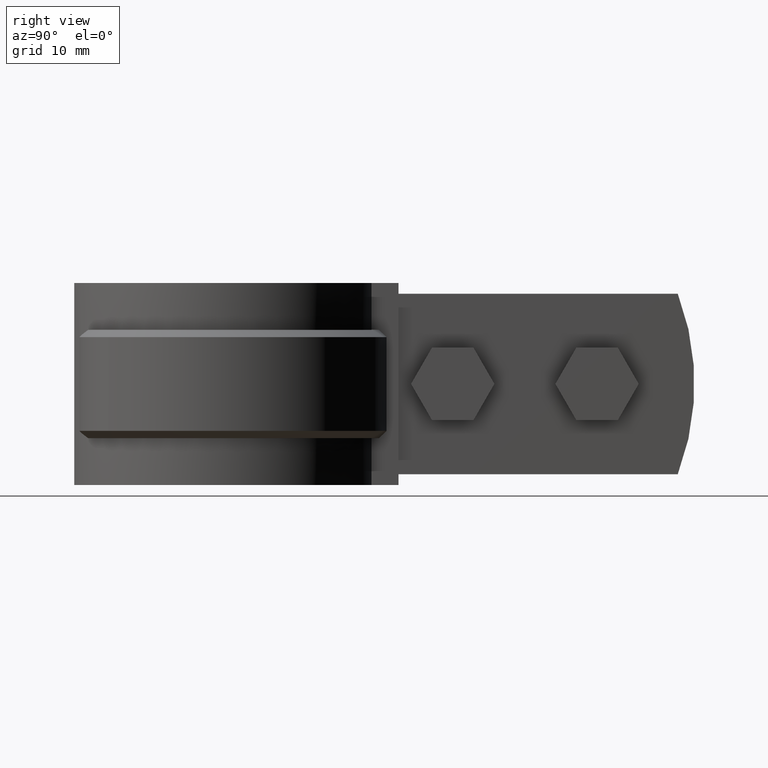
[diagram: clean part render]
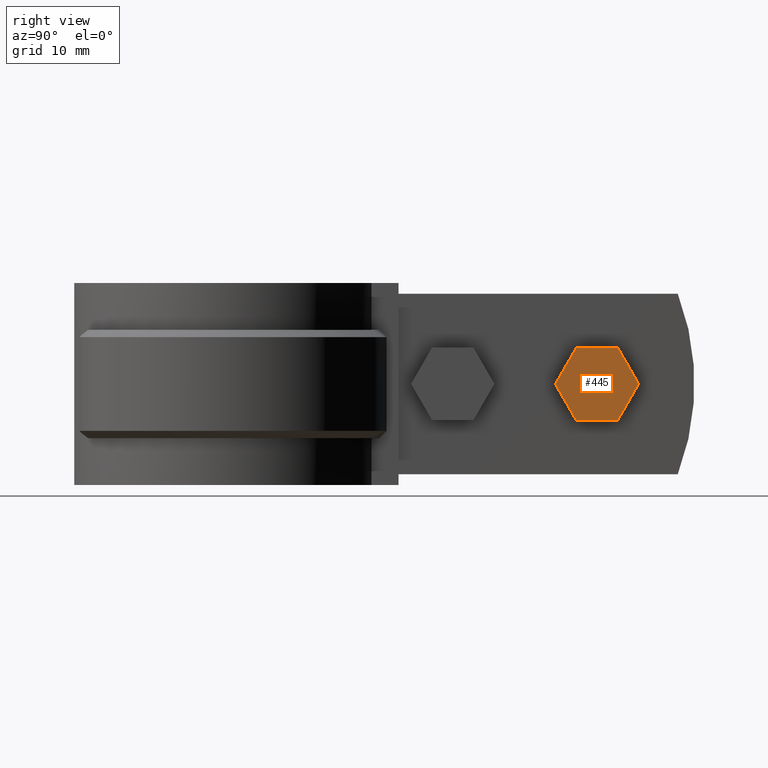
[diagram: same view with one face highlighted and labeled with its STEP entity id]
A machine part, right view. The second image highlights one B-rep face of the part: STEP entity #445.
In plain terms, the highlighted planar face has unit normal (-1, 0, 0).
Its self-contained STEP definition (entity closure, byte-faithful):
#445 = ADVANCED_FACE( '', ( #785 ), #786, .F. );
#785 = FACE_OUTER_BOUND( '', #1583, .T. );
#786 = PLANE( '', #1584 );
#1583 = EDGE_LOOP( '', ( #3518, #3519, #3520, #3521, #3522, #3523 ) );
#1584 = AXIS2_PLACEMENT_3D( '', #3524, #3525, #3526 );
#3518 = ORIENTED_EDGE( '', *, *, #4344, .T. );
#3519 = ORIENTED_EDGE( '', *, *, #4347, .T. );
#3520 = ORIENTED_EDGE( '', *, *, #4350, .T. );
#3521 = ORIENTED_EDGE( '', *, *, #4351, .T. );
#3522 = ORIENTED_EDGE( '', *, *, #4352, .T. );
#3523 = ORIENTED_EDGE( '', *, *, #4353, .T. );
#3524 = CARTESIAN_POINT( '', ( 9.09999999999999, 42.7841044070818, -17.5000000000000 ) );
#3525 = DIRECTION( '', ( -1.00000000000000, 0.000000000000000, 0.000000000000000 ) );
#3526 = DIRECTION( '', ( 0.000000000000000, 0.000000000000000, 1.00000000000000 ) );
#4344 = EDGE_CURVE( '', #5098, #5096, #5099, .T. );
#4347 = EDGE_CURVE( '', #5096, #5101, #5103, .T. );
#4350 = EDGE_CURVE( '', #5101, #5108, #5109, .T. );
#4351 = EDGE_CURVE( '', #5108, #5110, #5111, .T. );
#4352 = EDGE_CURVE( '', #5110, #5112, #5113, .T. );
#4353 = EDGE_CURVE( '', #5112, #5098, #5114, .T. );
#5096 = VERTEX_POINT( '', #7622 );
#5098 = VERTEX_POINT( '', #7625 );
#5099 = LINE( '', #7626, #7627 );
#5101 = VERTEX_POINT( '', #7630 );
#5103 = LINE( '', #7633, #7634 );
#5108 = VERTEX_POINT( '', #7639 );
#5109 = LINE( '', #7640, #7641 );
#5110 = VERTEX_POINT( '', #7642 );
#5111 = LINE( '', #7643, #7644 );
#5112 = VERTEX_POINT( '', #7645 );
#5113 = LINE( '', #7646, #7647 );
#5114 = LINE( '', #7648, #7649 );
#7622 = CARTESIAN_POINT( '', ( 9.09999999999999, 54.3311097908744, -17.5000000000000 ) );
#7625 = CARTESIAN_POINT( '', ( 9.09999999999999, 48.5576070989781, -17.5000000000000 ) );
#7626 = CARTESIAN_POINT( '', ( 9.09999999999999, 48.5576070989781, -17.5000000000000 ) );
#7627 = VECTOR( '', #8488, 1000.00000000000 );
#7630 = CARTESIAN_POINT( '', ( 9.09999999999999, 57.2178611368225, -12.5000000000000 ) );
#7633 = CARTESIAN_POINT( '', ( 9.09999999999999, 54.3311097908744, -17.5000000000000 ) );
#7634 = VECTOR( '', #8491, 1000.00000000000 );
#7639 = CARTESIAN_POINT( '', ( 9.09999999999999, 54.3311097908744, -7.49999999999998 ) );
#7640 = CARTESIAN_POINT( '', ( 9.09999999999999, 57.2178611368225, -12.5000000000000 ) );
#7641 = VECTOR( '', #8498, 1000.00000000000 );
#7642 = CARTESIAN_POINT( '', ( 9.09999999999999, 48.5576070989781, -7.49999999999998 ) );
#7643 = CARTESIAN_POINT( '', ( 9.09999999999999, 54.3311097908744, -7.49999999999998 ) );
#7644 = VECTOR( '', #8499, 1000.00000000000 );
#7645 = CARTESIAN_POINT( '', ( 9.09999999999999, 45.6708557530300, -12.5000000000000 ) );
#7646 = CARTESIAN_POINT( '', ( 9.09999999999999, 48.5576070989781, -7.49999999999998 ) );
#7647 = VECTOR( '', #8500, 1000.00000000000 );
#7648 = CARTESIAN_POINT( '', ( 9.09999999999999, 45.6708557530300, -12.5000000000000 ) );
#7649 = VECTOR( '', #8501, 1000.00000000000 );
#8488 = DIRECTION( '', ( 0.000000000000000, 1.00000000000000, -3.00462919747431E-016 ) );
#8491 = DIRECTION( '', ( 0.000000000000000, 0.500000000000001, 0.866025403784438 ) );
#8498 = DIRECTION( '', ( 0.000000000000000, -0.500000000000001, 0.866025403784438 ) );
#8499 = DIRECTION( '', ( 0.000000000000000, -1.00000000000000, 0.000000000000000 ) );
#8500 = DIRECTION( '', ( 0.000000000000000, -0.500000000000001, -0.866025403784438 ) );
#8501 = DIRECTION( '', ( 0.000000000000000, 0.500000000000001, -0.866025403784438 ) );